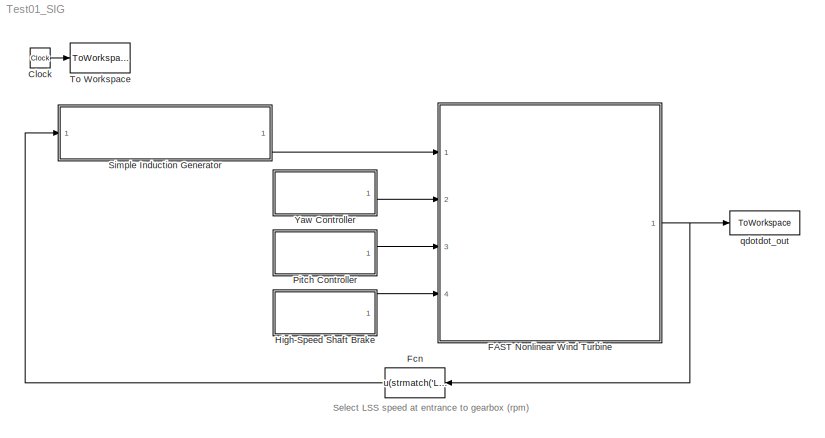
MODEL Test01_SIG
KIND model
BLOCK [Clock] Clock
  SID = 1
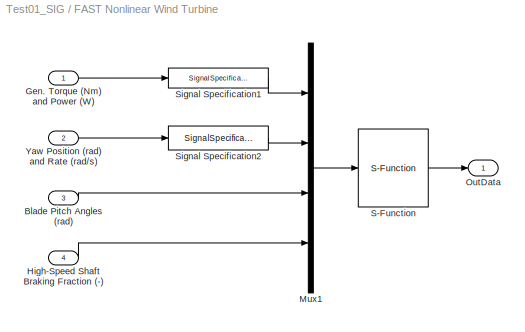
BLOCK [SubSystem] FAST Nonlinear Wind Turbine
  FunctionWithSeparateData = off
  MaskDescription = This block contains the FAST S-Function.
  MaskHideContents = off
  MaskIconFrame = on
  MaskIconOpaque = on
  MaskIconRotate = none
  MaskIconUnits = autoscale
  MaskInitialization = clear FAST_SFunc\n
  MaskPortRotate = default
  MaskType = FAST Nonlinear Wind Turbine
  MinAlgLoopOccurrences = off
  Opaque = off
  Ports = [4, 1]
  PropExecContextOutsideSubsystem = off
  RTWSystemCode = Auto
  RequestExecContextInheritance = off
  SID = 2
BLOCK [Inport] FAST Nonlinear Wind Turbine/Blade Pitch Angles (rad)
  IconDisplay = Port number
  Port = 3
  SID = 5
BLOCK [Inport] FAST Nonlinear Wind Turbine/Gen. Torque (Nm) and Power (W)
  IconDisplay = Port number
  SID = 3
BLOCK [Inport] FAST Nonlinear Wind Turbine/High-Speed Shaft Braking Fraction (-)
  IconDisplay = Port number
  Port = 4
  SID = 54
BLOCK [Mux] FAST Nonlinear Wind Turbine/Mux1
  DisplayOption = bar
  Ports = [4, 1]
  SID = 9
BLOCK [Outport] FAST Nonlinear Wind Turbine/OutData
  IconDisplay = Port number
  SID = 13
BLOCK [S-Function] FAST Nonlinear Wind Turbine/S-Function
  EnableBusSupport = off
  FunctionName = FAST_SFunc
  Parameters = FAST_InputFileName, TMax, 0
  Ports = [1, 1]
  SID = 10
BLOCK [SignalSpecification] FAST Nonlinear Wind Turbine/Signal Specification1
  Dimensions = 2
  OutDataTypeStr = double
  SID = 11
  SignalType = real
BLOCK [SignalSpecification] FAST Nonlinear Wind Turbine/Signal Specification2
  Dimensions = 2
  OutDataTypeStr = double
  SID = 12
  SignalType = real
BLOCK [Inport] FAST Nonlinear Wind Turbine/Yaw Position (rad) and Rate (rad//s)
  IconDisplay = Port number
  Port = 2
  SID = 4
BLOCK [Fcn] Fcn
  Expr = u(strmatch('LSSGagVxa',OutList))
  SID = 16
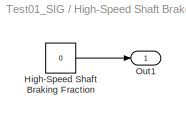
BLOCK [SubSystem] High-Speed Shaft Brake
  FunctionWithSeparateData = off
  MaskHideContents = off
  MinAlgLoopOccurrences = off
  Opaque = off
  Ports = [0, 1]
  PropExecContextOutsideSubsystem = off
  RTWSystemCode = Auto
  RequestExecContextInheritance = off
  SID = 55
BLOCK [Constant] High-Speed Shaft Brake/High-Speed Shaft Braking Fraction
  SID = 56
  Value = 0
BLOCK [Outport] High-Speed Shaft Brake/Out1
  IconDisplay = Port number
  SID = 57
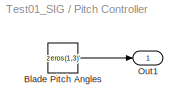
BLOCK [SubSystem] Pitch Controller
  FunctionWithSeparateData = off
  MaskHideContents = off
  MinAlgLoopOccurrences = off
  Opaque = off
  Ports = [0, 1]
  PropExecContextOutsideSubsystem = off
  RTWSystemCode = Auto
  RequestExecContextInheritance = off
  SID = 17
BLOCK [Constant] Pitch Controller/Blade Pitch Angles
  SID = 18
  Value = zeros(1,3)'
BLOCK [Outport] Pitch Controller/Out1
  IconDisplay = Port number
  SID = 19
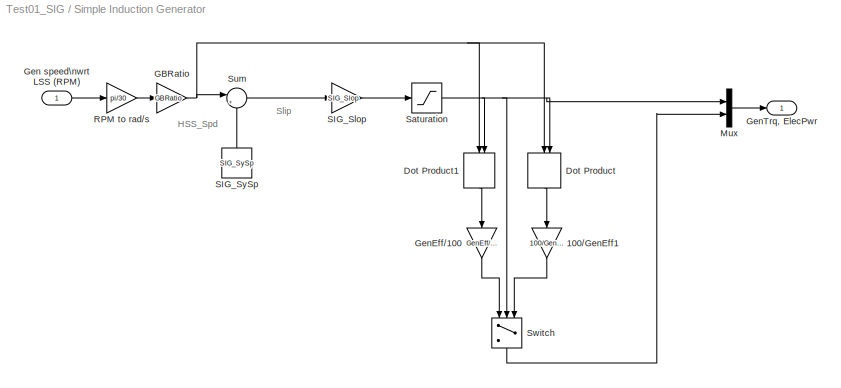
BLOCK [SubSystem] Simple Induction Generator
  FunctionWithSeparateData = off
  MaskHideContents = off
  MinAlgLoopOccurrences = off
  Opaque = off
  Ports = [1, 1]
  PropExecContextOutsideSubsystem = off
  RTWSystemCode = Auto
  RequestExecContextInheritance = off
  SID = 20
BLOCK [Gain] Simple Induction Generator/100//GenEff1
  Gain = 100/GenEff
  SID = 22
BLOCK [DotProduct] Simple Induction Generator/Dot Product
  OutDataTypeStr = Inherit: Inherit via internal rule
  SID = 23
BLOCK [DotProduct] Simple Induction Generator/Dot Product1
  OutDataTypeStr = Inherit: Inherit via internal rule
  SID = 24
BLOCK [Gain] Simple Induction Generator/GBRatio
  Gain = GBRatio
  SID = 25
BLOCK [Inport] Simple Induction Generator/Gen speed\nwrt LSS (RPM)
  IconDisplay = Port number
  SID = 21
BLOCK [Gain] Simple Induction Generator/GenEff//100
  Gain = GenEff/100
  SID = 26
BLOCK [Outport] Simple Induction Generator/GenTrq, ElecPwr
  IconDisplay = Port number
  SID = 34
BLOCK [Mux] Simple Induction Generator/Mux
  DisplayOption = bar
  Inputs = 2
  Ports = [2, 1]
  SID = 27
BLOCK [Gain] Simple Induction Generator/RPM to rad//s
  Gain = pi/30
  SID = 28
BLOCK [Gain] Simple Induction Generator/SIG_Slop
  Gain = SIG_Slop
  SID = 29
BLOCK [Constant] Simple Induction Generator/SIG_SySp
  SID = 30
  Value = SIG_SySp
BLOCK [Saturate] Simple Induction Generator/Saturation
  InputPortMap = u0
  LowerLimit = -(SIG_POTq)
  Ports = [1, 1]
  SID = 31
  UpperLimit = SIG_POTq
BLOCK [Sum] Simple Induction Generator/Sum
  IconShape = round
  InputSameDT = off
  Inputs = |+-
  OutDataTypeStr = Inherit: Inherit via internal rule
  Ports = [2, 1]
  SID = 32
BLOCK [Switch] Simple Induction Generator/Switch
  Criteria = u2 > Threshold
  InputSameDT = off
  SID = 33
BLOCK [ToWorkspace] To Workspace
  MaxDataPoints = inf
  Ports = [1]
  SID = 37
  SampleTime = -1
  VariableName = Time
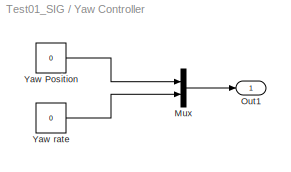
BLOCK [SubSystem] Yaw Controller
  FunctionWithSeparateData = off
  MaskHideContents = off
  MinAlgLoopOccurrences = off
  Opaque = off
  Ports = [0, 1]
  PropExecContextOutsideSubsystem = off
  RTWSystemCode = Auto
  RequestExecContextInheritance = off
  SID = 38
BLOCK [Mux] Yaw Controller/Mux
  DisplayOption = bar
  Inputs = 2
  Ports = [2, 1]
  SID = 39
BLOCK [Outport] Yaw Controller/Out1
  IconDisplay = Port number
  SID = 42
BLOCK [Constant] Yaw Controller/Yaw Position
  SID = 40
  Value = 0
BLOCK [Constant] Yaw Controller/Yaw rate
  SID = 41
  Value = 0
BLOCK [ToWorkspace] qdotdot_out
  MaxDataPoints = inf
  Ports = [1]
  SID = 43
  SampleTime = -1
  VariableName = OutData
ANNOTATION (root): Select LSS speed at entrance to gearbox (rpm)
ANNOTATION Simple Induction Generator: HSS_Spd
ANNOTATION Simple Induction Generator: Slip
LINE Clock:1 -> To Workspace:1
LINE FAST Nonlinear Wind Turbine/Blade Pitch Angles (rad):1 -> FAST Nonlinear Wind Turbine/Mux1:3
LINE FAST Nonlinear Wind Turbine/Gen. Torque (Nm) and Power (W):1 -> FAST Nonlinear Wind Turbine/Signal Specification1:1
LINE FAST Nonlinear Wind Turbine/High-Speed Shaft Braking Fraction (-):1 -> FAST Nonlinear Wind Turbine/Mux1:4
LINE FAST Nonlinear Wind Turbine/Mux1:1 -> FAST Nonlinear Wind Turbine/S-Function:1
LINE FAST Nonlinear Wind Turbine/S-Function:1 -> FAST Nonlinear Wind Turbine/OutData:1
LINE FAST Nonlinear Wind Turbine/Signal Specification1:1 -> FAST Nonlinear Wind Turbine/Mux1:1
LINE FAST Nonlinear Wind Turbine/Signal Specification2:1 -> FAST Nonlinear Wind Turbine/Mux1:2
LINE FAST Nonlinear Wind Turbine/Yaw Position (rad) and Rate (rad//s):1 -> FAST Nonlinear Wind Turbine/Signal Specification2:1
NET FAST Nonlinear Wind Turbine:1 -> Fcn:1, qdotdot_out:1
LINE Fcn:1 -> Simple Induction Generator:1
LINE High-Speed Shaft Brake/High-Speed Shaft Braking Fraction:1 -> High-Speed Shaft Brake/Out1:1
LINE High-Speed Shaft Brake:1 -> FAST Nonlinear Wind Turbine:4
LINE Pitch Controller/Blade Pitch Angles:1 -> Pitch Controller/Out1:1
LINE Pitch Controller:1 -> FAST Nonlinear Wind Turbine:3
LINE Simple Induction Generator/100//GenEff1:1 -> Simple Induction Generator/Switch:3
LINE Simple Induction Generator/Dot Product1:1 -> Simple Induction Generator/GenEff//100:1
LINE Simple Induction Generator/Dot Product:1 -> Simple Induction Generator/100//GenEff1:1
NET Simple Induction Generator/GBRatio:1 -> Simple Induction Generator/Dot Product1:1, Simple Induction Generator/Dot Product:1, Simple Induction Generator/Sum:1
LINE Simple Induction Generator/Gen speed\nwrt LSS (RPM):1 -> Simple Induction Generator/RPM to rad//s:1
LINE Simple Induction Generator/GenEff//100:1 -> Simple Induction Generator/Switch:1
LINE Simple Induction Generator/Mux:1 -> Simple Induction Generator/GenTrq, ElecPwr:1
LINE Simple Induction Generator/RPM to rad//s:1 -> Simple Induction Generator/GBRatio:1
LINE Simple Induction Generator/SIG_Slop:1 -> Simple Induction Generator/Saturation:1
LINE Simple Induction Generator/SIG_SySp:1 -> Simple Induction Generator/Sum:2
NET Simple Induction Generator/Saturation:1 -> Simple Induction Generator/Dot Product1:2, Simple Induction Generator/Dot Product:2, Simple Induction Generator/Mux:1, Simple Induction Generator/Switch:2
LINE Simple Induction Generator/Sum:1 -> Simple Induction Generator/SIG_Slop:1
LINE Simple Induction Generator/Switch:1 -> Simple Induction Generator/Mux:2
LINE Simple Induction Generator:1 -> FAST Nonlinear Wind Turbine:1
LINE Yaw Controller/Mux:1 -> Yaw Controller/Out1:1
LINE Yaw Controller/Yaw Position:1 -> Yaw Controller/Mux:1
LINE Yaw Controller/Yaw rate:1 -> Yaw Controller/Mux:2
LINE Yaw Controller:1 -> FAST Nonlinear Wind Turbine:2
note: NET lines group one-source signal fan-out (src -> all destinations, sorted); 1:1 wires keep LINE
